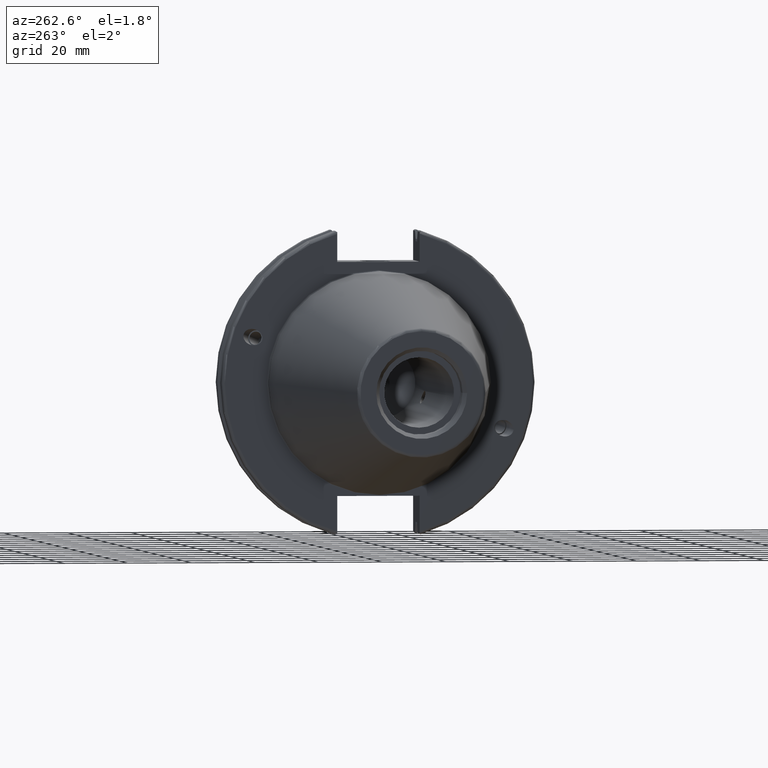
[diagram: clean part render]
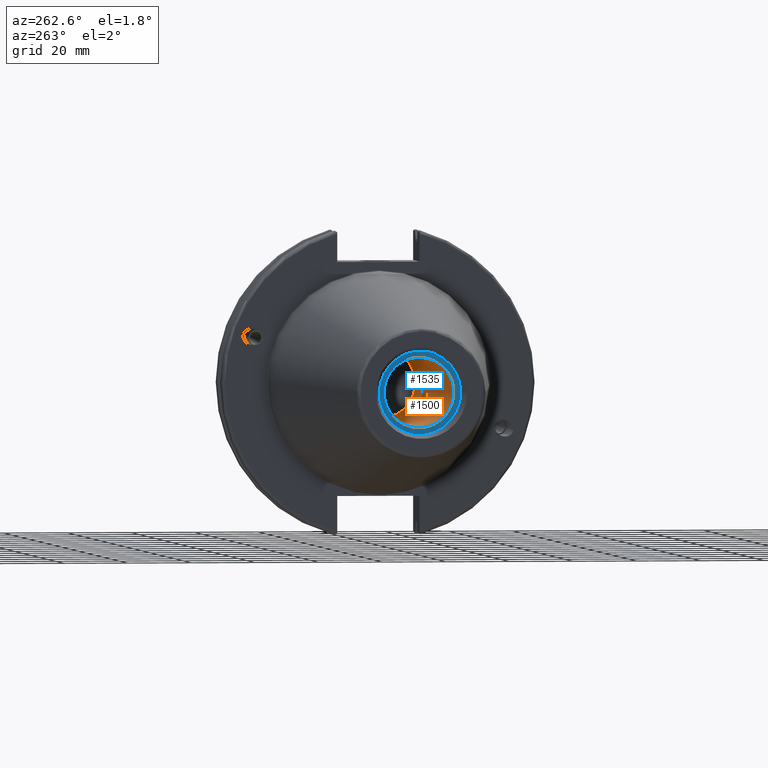
[diagram: same view with the hole feature highlighted: cylindrical wall and planar end face, labeled with their STEP entity ids]
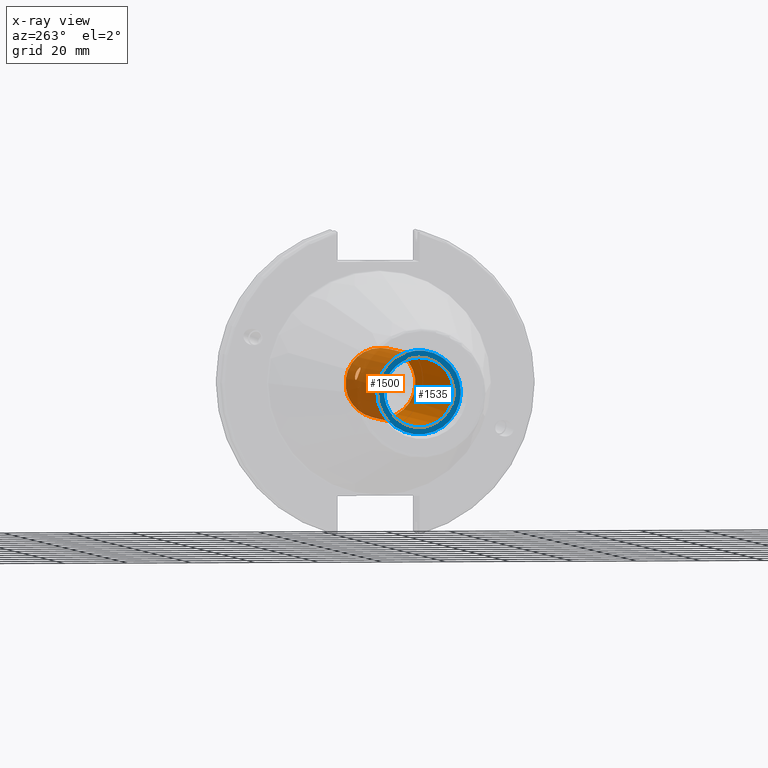
[diagram: x-ray of the same camera — body ghosted, the hole faces saturated]
A machine part, auxiliary view. The highlighted faces form one hole feature of diameter 21.971 mm: the cylindrical wall (entity #1500, orange) and its adjacent planar end face (entity #1535, blue) — they share a circular edge in the B-rep.
The next image is the same camera in x-ray (body ghosted, the hole faces saturated) — the bore reads through the body.
Wall:
#60=FACE_BOUND('',#287,.T.);
#61=FACE_BOUND('',#288,.T.);
#100=B_SPLINE_CURVE_WITH_KNOTS('',3,(#2425,#2426,#2427,#2428,#2429,#2430,
#2431,#2432,#2433,#2434,#2435,#2436,#2437,#2438,#2439,#2440,#2441,#2442,
#2443,#2444),.UNSPECIFIED.,.F.,.F.,(4,2,2,2,2,2,2,2,2,4),(0.,0.119686833233143,
0.239373666466287,0.327325587584447,0.371301548143528,0.415277508702608,
0.459253469261688,0.503229429820769,0.59118135093893,0.695184360164974),
 .UNSPECIFIED.);
#101=B_SPLINE_CURVE_WITH_KNOTS('',3,(#2445,#2446,#2447,#2448,#2449,#2450,
#2451,#2452,#2453,#2454,#2455,#2456,#2457,#2458,#2459,#2460,#2461,#2462,
#2463,#2464,#2465,#2466,#2467,#2468,#2469,#2470),.UNSPECIFIED.,.F.,.F.,
(4,2,2,2,2,2,2,2,2,2,2,2,4),(0.695184360164974,0.710868184172073,0.830555017405216,
0.980503405754825,1.13045179410443,1.20969727801656,1.24932001997262,1.28894276192868,
1.32856550388474,1.36818824584081,1.44743372975293,1.59738211810254,1.74733050645215),
 .UNSPECIFIED.);
#102=B_SPLINE_CURVE_WITH_KNOTS('',3,(#2523,#2524,#2525,#2526,#2527,#2528,
#2529,#2530,#2531,#2532,#2533,#2534,#2535,#2536,#2537,#2538),
 .UNSPECIFIED.,.F.,.F.,(4,2,2,2,2,2,2,4),(0.,0.131908529724542,0.263817059449084,
0.339382225992489,0.414947392535894,0.490512559079299,0.566077725622705,
0.693825267105461),.UNSPECIFIED.);
#103=B_SPLINE_CURVE_WITH_KNOTS('',3,(#2539,#2540,#2541,#2542,#2543,#2544,
#2545,#2546,#2547,#2548,#2549,#2550,#2551,#2552,#2553,#2554,#2555,#2556,
#2557,#2558,#2559,#2560,#2561,#2562),.UNSPECIFIED.,.F.,.F.,(4,2,2,2,2,2,
2,2,2,2,2,4),(0.693825267105461,0.697986255347245,0.829894785071785,1.09325104763117,
1.20929557753499,1.24540597506618,1.28151637259737,1.32113911455343,1.36076185650949,
1.44000734042161,1.58995572877122,1.73990411712083),.UNSPECIFIED.);
#190=FACE_OUTER_BOUND('',#286,.T.);
#286=EDGE_LOOP('',(#1183,#1184,#1185,#1186));
#287=EDGE_LOOP('',(#1187,#1188));
#288=EDGE_LOOP('',(#1189,#1190));
#374=LINE('',#2595,#455);
#455=VECTOR('',#2039,10.9855);
#555=CIRCLE('',#1684,10.9855);
#556=CIRCLE('',#1686,10.9855);
#644=VERTEX_POINT('',#2422);
#645=VERTEX_POINT('',#2424);
#661=VERTEX_POINT('',#2520);
#662=VERTEX_POINT('',#2522);
#669=VERTEX_POINT('',#2589);
#670=VERTEX_POINT('',#2593);
#815=EDGE_CURVE('',#645,#644,#100,.T.);
#816=EDGE_CURVE('',#644,#645,#101,.T.);
#842=EDGE_CURVE('',#662,#661,#102,.T.);
#843=EDGE_CURVE('',#661,#662,#103,.T.);
#856=EDGE_CURVE('',#669,#669,#555,.T.);
#858=EDGE_CURVE('',#670,#670,#556,.T.);
#859=EDGE_CURVE('',#670,#669,#374,.T.);
#1183=ORIENTED_EDGE('',*,*,#858,.F.);
#1184=ORIENTED_EDGE('',*,*,#859,.T.);
#1185=ORIENTED_EDGE('',*,*,#856,.F.);
#1186=ORIENTED_EDGE('',*,*,#859,.F.);
#1187=ORIENTED_EDGE('',*,*,#815,.T.);
#1188=ORIENTED_EDGE('',*,*,#816,.T.);
#1189=ORIENTED_EDGE('',*,*,#842,.T.);
#1190=ORIENTED_EDGE('',*,*,#843,.T.);
#1448=CYLINDRICAL_SURFACE('',#1685,10.9855);
#1500=ADVANCED_FACE('',(#190,#60,#61),#1448,.F.);
#1684=AXIS2_PLACEMENT_3D('',#2590,#2032,#2033);
#1685=AXIS2_PLACEMENT_3D('',#2592,#2035,#2036);
#1686=AXIS2_PLACEMENT_3D('',#2594,#2037,#2038);
#2032=DIRECTION('center_axis',(-1.,0.,0.));
#2033=DIRECTION('ref_axis',(0.,0.,1.));
#2035=DIRECTION('center_axis',(-1.,0.,0.));
#2036=DIRECTION('ref_axis',(0.,0.,1.));
#2037=DIRECTION('center_axis',(1.,0.,0.));
#2038=DIRECTION('ref_axis',(0.,0.,1.));
#2039=DIRECTION('',(1.,0.,0.));
#2422=CARTESIAN_POINT('',(-26.9402421846392,-9.52319068258424,-5.47631714497969));
#2424=CARTESIAN_POINT('',(-25.5235170780255,-10.8455693307922,-1.74780895437107));
#2425=CARTESIAN_POINT('Ctrl Pts',(-25.5235170780255,-10.8455693307922,-1.74780895437107));
#2426=CARTESIAN_POINT('Ctrl Pts',(-25.9224731888026,-10.8455693307922,-1.74780895437107));
#2427=CARTESIAN_POINT('Ctrl Pts',(-26.3581770333323,-10.839544391912,-1.78753535786581));
#2428=CARTESIAN_POINT('Ctrl Pts',(-27.1952133019484,-10.8055788020331,-1.98254195154673));
#2429=CARTESIAN_POINT('Ctrl Pts',(-27.5965111172946,-10.7776428389134,-2.13797148087135));
#2430=CARTESIAN_POINT('Ctrl Pts',(-28.1767635101751,-10.6969187361728,-2.50652755967298));
#2431=CARTESIAN_POINT('Ctrl Pts',(-28.4153488811481,-10.6478006682595,-2.71470706571078));
#2432=CARTESIAN_POINT('Ctrl Pts',(-28.6668674306608,-10.5455379056632,-3.08039961664504));
#2433=CARTESIAN_POINT('Ctrl Pts',(-28.7336624524962,-10.5066935444514,-3.21102732556314));
#2434=CARTESIAN_POINT('Ctrl Pts',(-28.8237105288222,-10.4204913025339,-3.48059248091202));
#2435=CARTESIAN_POINT('Ctrl Pts',(-28.8470008816521,-10.3731288334213,-3.619515999073));
#2436=CARTESIAN_POINT('Ctrl Pts',(-28.8470008816521,-10.2728577378659,-3.89500856993527));
#2437=CARTESIAN_POINT('Ctrl Pts',(-28.8237105288222,-10.2198411779741,-4.03187416735077));
#2438=CARTESIAN_POINT('Ctrl Pts',(-28.7336624524962,-10.1126027845179,-4.29378278969607));
#2439=CARTESIAN_POINT('Ctrl Pts',(-28.6668674306608,-10.0583934187964,-4.41881809432326));
#2440=CARTESIAN_POINT('Ctrl Pts',(-28.4153488811481,-9.90166859912615,-4.76468807758572));
#2441=CARTESIAN_POINT('Ctrl Pts',(-28.1767635101751,-9.8054800150361,-4.95573531682362));
#2442=CARTESIAN_POINT('Ctrl Pts',(-27.6403400086693,-9.64363837878105,-5.26470916228335));
#2443=CARTESIAN_POINT('Ctrl Pts',(-27.2993204044706,-9.57264151894871,-5.39032326783994));
#2444=CARTESIAN_POINT('Ctrl Pts',(-26.9402421846657,-9.52319068262686,-5.47631714497334));
#2445=CARTESIAN_POINT('Ctrl Pts',(-26.9402421846657,-9.52319068262686,-5.47631714497334));
#2446=CARTESIAN_POINT('Ctrl Pts',(-26.8860926014362,-9.51573341557615,-5.48928516238635));
#2447=CARTESIAN_POINT('Ctrl Pts',(-26.831537998593,-9.50875070268245,-5.50136697212495));
#2448=CARTESIAN_POINT('Ctrl Pts',(-26.3581770333323,-9.4525783272784,-5.59819330199644));
#2449=CARTESIAN_POINT('Ctrl Pts',(-25.9224731888026,-9.43165805828388,-5.63249824870002));
#2450=CARTESIAN_POINT('Ctrl Pts',(-25.0236891168601,-9.43165805828388,-5.63249824870001));
#2451=CARTESIAN_POINT('Ctrl Pts',(-24.4804797232463,-9.46427581922285,-5.57908486316072));
#2452=CARTESIAN_POINT('Ctrl Pts',(-23.4356208753768,-9.5958590173257,-5.34959762891445));
#2453=CARTESIAN_POINT('Ctrl Pts',(-22.9332191245712,-9.69347246434269,-5.17618411257941));
#2454=CARTESIAN_POINT('Ctrl Pts',(-22.294268750936,-9.88147703869243,-4.80193621364248));
#2455=CARTESIAN_POINT('Ctrl Pts',(-22.071505171321,-9.96204879721257,-4.63530906313461));
#2456=CARTESIAN_POINT('Ctrl Pts',(-21.82574034595,-10.0937873275589,-4.33687584128211));
#2457=CARTESIAN_POINT('Ctrl Pts',(-21.7582972123282,-10.1394813060058,-4.22933247382319));
#2458=CARTESIAN_POINT('Ctrl Pts',(-21.6652390563019,-10.2315025247259,-4.00157627722949));
#2459=CARTESIAN_POINT('Ctrl Pts',(-21.6395918285545,-10.2778206993677,-3.88137294527552));
#2460=CARTESIAN_POINT('Ctrl Pts',(-21.6395918285545,-10.3681658719195,-3.63315162373275));
#2461=CARTESIAN_POINT('Ctrl Pts',(-21.6652390563019,-10.4099493040427,-3.51129778048195));
#2462=CARTESIAN_POINT('Ctrl Pts',(-21.7582972123282,-10.485855821993,-3.27767631247393));
#2463=CARTESIAN_POINT('Ctrl Pts',(-21.82574034595,-10.5199797478263,-3.16592179025478));
#2464=CARTESIAN_POINT('Ctrl Pts',(-22.071505171321,-10.6108913560354,-2.85262878398763));
#2465=CARTESIAN_POINT('Ctrl Pts',(-22.294268750936,-10.6562756759326,-2.67319445320093));
#2466=CARTESIAN_POINT('Ctrl Pts',(-22.9332191245712,-10.7528177288589,-2.26565691891493));
#2467=CARTESIAN_POINT('Ctrl Pts',(-23.4356208753768,-10.7895095498502,-2.07006974408344));
#2468=CARTESIAN_POINT('Ctrl Pts',(-24.4804797232463,-10.8362225228904,-1.8096922741389));
#2469=CARTESIAN_POINT('Ctrl Pts',(-25.0236891168601,-10.8455693307922,-1.74780895437107));
#2470=CARTESIAN_POINT('Ctrl Pts',(-25.5235170780255,-10.8455693307922,-1.74780895437107));
#2520=CARTESIAN_POINT('',(-26.9402421845153,9.52319068260596,5.47631714500936));
#2522=CARTESIAN_POINT('',(-25.5235170780255,10.8455693307922,1.74780895437107));
#2523=CARTESIAN_POINT('Ctrl Pts',(-25.5235170780255,10.8455693307922,1.74780895437107));
#2524=CARTESIAN_POINT('Ctrl Pts',(-25.9632121771073,10.8455693307922,1.74780895437107));
#2525=CARTESIAN_POINT('Ctrl Pts',(-26.442594873787,10.8383709964217,1.7959664571658));
#2526=CARTESIAN_POINT('Ctrl Pts',(-27.3519799757018,10.7962891973262,2.03369662215048));
#2527=CARTESIAN_POINT('Ctrl Pts',(-27.7822172603396,10.761788810905,2.2224376752005));
#2528=CARTESIAN_POINT('Ctrl Pts',(-28.3252856471715,10.6648242982181,2.63951813091313));
#2529=CARTESIAN_POINT('Ctrl Pts',(-28.5137854586409,10.6160759510423,2.83420074050785));
#2530=CARTESIAN_POINT('Ctrl Pts',(-28.7750183392881,10.4885985150108,3.27460901933327));
#2531=CARTESIAN_POINT('Ctrl Pts',(-28.8470008816521,10.4091426492823,3.52056885320648));
#2532=CARTESIAN_POINT('Ctrl Pts',(-28.8470008816521,10.2368439220049,3.99395571580179));
#2533=CARTESIAN_POINT('Ctrl Pts',(-28.7750183392881,10.1396107127252,4.23344512577805));
#2534=CARTESIAN_POINT('Ctrl Pts',(-28.513785458641,9.9541751093878,4.65275835687149));
#2535=CARTESIAN_POINT('Ctrl Pts',(-28.3252856471715,9.8663789405842,4.83322872168078));
#2536=CARTESIAN_POINT('Ctrl Pts',(-27.7931087671317,9.67645097428544,5.20740068871255));
#2537=CARTESIAN_POINT('Ctrl Pts',(-27.3790493521749,9.58362147518866,5.37122937422736));
#2538=CARTESIAN_POINT('Ctrl Pts',(-26.9402421845154,9.52319068260616,5.47631714500934));
#2539=CARTESIAN_POINT('Ctrl Pts',(-26.9402421845154,9.52319068260616,5.47631714500934));
#2540=CARTESIAN_POINT('Ctrl Pts',(-26.9259493735239,9.52122233304375,5.47974006002988));
#2541=CARTESIAN_POINT('Ctrl Pts',(-26.9116304726285,9.51928731326139,5.48310074803667));
#2542=CARTESIAN_POINT('Ctrl Pts',(-26.442594873787,9.45709886034952,5.59098046114587));
#2543=CARTESIAN_POINT('Ctrl Pts',(-25.9632121771073,9.43165805828388,5.63249824870002));
#2544=CARTESIAN_POINT('Ctrl Pts',(-24.6456628694942,9.43165805828388,5.63249824870001));
#2545=CARTESIAN_POINT('Ctrl Pts',(-23.6129759087193,9.54300987243374,5.45682027341917));
#2546=CARTESIAN_POINT('Ctrl Pts',(-22.4915777455551,9.81430465972338,4.93888807981503));
#2547=CARTESIAN_POINT('Ctrl Pts',(-22.1135113311296,9.93511643701296,4.69819818081389));
#2548=CARTESIAN_POINT('Ctrl Pts',(-21.8167348410648,10.1002577332685,4.32151959704693));
#2549=CARTESIAN_POINT('Ctrl Pts',(-21.751306341111,10.1450171485842,4.21599403040907));
#2550=CARTESIAN_POINT('Ctrl Pts',(-21.6624430214445,10.2358005469391,3.99053453298755));
#2551=CARTESIAN_POINT('Ctrl Pts',(-21.6395918285545,10.2818250078464,3.87037119814982));
#2552=CARTESIAN_POINT('Ctrl Pts',(-21.6395918285544,10.3681658719195,3.63315162373275));
#2553=CARTESIAN_POINT('Ctrl Pts',(-21.6652390563019,10.4099493040427,3.51129778048195));
#2554=CARTESIAN_POINT('Ctrl Pts',(-21.7582972123282,10.485855821993,3.27767631247393));
#2555=CARTESIAN_POINT('Ctrl Pts',(-21.82574034595,10.5199797478263,3.16592179025479));
#2556=CARTESIAN_POINT('Ctrl Pts',(-22.071505171321,10.6108913560354,2.85262878398763));
#2557=CARTESIAN_POINT('Ctrl Pts',(-22.294268750936,10.6562756759326,2.67319445320093));
#2558=CARTESIAN_POINT('Ctrl Pts',(-22.9332191245712,10.7528177288589,2.26565691891493));
#2559=CARTESIAN_POINT('Ctrl Pts',(-23.4356208753768,10.7895095498502,2.07006974408344));
#2560=CARTESIAN_POINT('Ctrl Pts',(-24.4804797232463,10.8362225228904,1.8096922741389));
#2561=CARTESIAN_POINT('Ctrl Pts',(-25.0236891168601,10.8455693307922,1.74780895437107));
#2562=CARTESIAN_POINT('Ctrl Pts',(-25.5235170780255,10.8455693307922,1.74780895437107));
#2589=CARTESIAN_POINT('',(-1.6,-1.34533574120333E-15,-10.9855));
#2590=CARTESIAN_POINT('Origin',(-1.6,0.,0.));
#2592=CARTESIAN_POINT('Origin',(-51.6,0.,0.));
#2593=CARTESIAN_POINT('',(-95.25,1.34533574120333E-15,-10.9855));
#2594=CARTESIAN_POINT('Origin',(-95.25,0.,0.));
#2595=CARTESIAN_POINT('',(-51.6,-1.34533574120333E-15,-10.9855));
End face:
#67=FACE_BOUND('',#329,.T.);
#94=PLANE('',#1747);
#225=FACE_OUTER_BOUND('',#328,.T.);
#328=EDGE_LOOP('',(#1386));
#329=EDGE_LOOP('',(#1387));
#556=CIRCLE('',#1686,10.9855);
#583=CIRCLE('',#1748,13.1);
#670=VERTEX_POINT('',#2593);
#739=VERTEX_POINT('',#2927);
#858=EDGE_CURVE('',#670,#670,#556,.T.);
#960=EDGE_CURVE('',#739,#739,#583,.T.);
#1386=ORIENTED_EDGE('',*,*,#960,.F.);
#1387=ORIENTED_EDGE('',*,*,#858,.T.);
#1535=ADVANCED_FACE('',(#225,#67),#94,.T.);
#1686=AXIS2_PLACEMENT_3D('',#2594,#2037,#2038);
#1747=AXIS2_PLACEMENT_3D('',#2926,#2202,#2203);
#1748=AXIS2_PLACEMENT_3D('',#2928,#2204,#2205);
#2037=DIRECTION('center_axis',(1.,0.,0.));
#2038=DIRECTION('ref_axis',(0.,0.,1.));
#2202=DIRECTION('center_axis',(-1.,0.,0.));
#2203=DIRECTION('ref_axis',(0.,0.,1.));
#2204=DIRECTION('center_axis',(1.,0.,0.));
#2205=DIRECTION('ref_axis',(0.,0.,-1.));
#2593=CARTESIAN_POINT('',(-95.25,1.34533574120333E-15,-10.9855));
#2594=CARTESIAN_POINT('Origin',(-95.25,0.,0.));
#2926=CARTESIAN_POINT('Origin',(-95.25,13.1,0.));
#2927=CARTESIAN_POINT('',(-95.25,-13.1,-1.60428730688303E-15));
#2928=CARTESIAN_POINT('Origin',(-95.25,0.,0.));